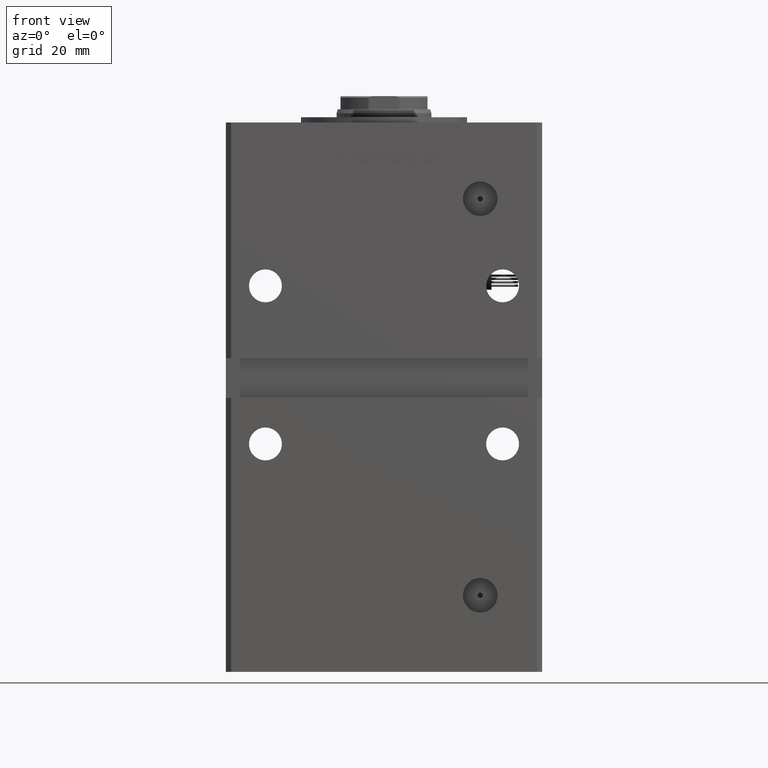
[diagram: clean part render]
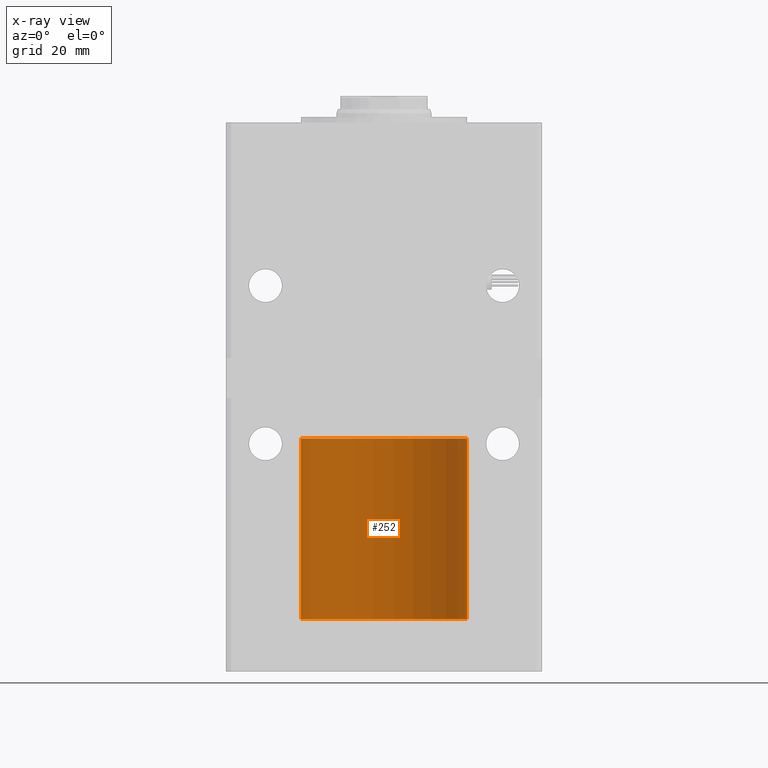
[diagram: x-ray — body ghosted, one internal face saturated and labeled with its STEP entity id]
A machine part, front view, then the same camera in x-ray: the body is ghosted and one INTERNAL B-rep face — a face not visible from any outside direction — is saturated and labeled: STEP entity #252.
In plain terms, the highlighted cylindrical surface (partial cylindrical patch) has radius 31.5 mm, axis along (0, -0, 1).
Its self-contained STEP definition (entity closure, byte-faithful):
#252 = ADVANCED_FACE ( 'NONE', ( #30803 ), #47981, .T. ) ;
#4994 = ORIENTED_EDGE ( 'NONE', *, *, #6700, .F. ) ;
#5452 = VECTOR ( 'NONE', #28426, 1000.000000000000000 ) ;
#5705 = DIRECTION ( 'NONE',  ( 1.000000000000000000, -9.892608450469889463E-18, -0.000000000000000000 ) ) ;
#6528 = DIRECTION ( 'NONE',  ( 0.000000000000000000, 1.000000000000000000, 0.000000000000000000 ) ) ;
#6700 = EDGE_CURVE ( 'NONE', #11824, #15753, #10664, .T. ) ;
#7622 = AXIS2_PLACEMENT_3D ( 'NONE', #48847, #44348, #10501 ) ;
#8800 = DIRECTION ( 'NONE',  ( 9.892608450469889463E-18, 1.000000000000000000, 0.000000000000000000 ) ) ;
#10221 = CARTESIAN_POINT ( 'NONE',  ( -198.5000000000000000, 2.289593014414659139E-16, 0.000000000000000000 ) ) ;
#10501 = DIRECTION ( 'NONE',  ( 0.000000000000000000, 1.000000000000000000, 0.000000000000000000 ) ) ;
#10664 = LINE ( 'NONE', #10944, #5452 ) ;
#10944 = CARTESIAN_POINT ( 'NONE',  ( 3.116171661898015219E-16, 31.50000000000000000, 0.000000000000000000 ) ) ;
#11824 = VERTEX_POINT ( 'NONE', #25715 ) ;
#13875 = EDGE_CURVE ( 'NONE', #11824, #34776, #15584, .T. ) ;
#15584 = CIRCLE ( 'NONE', #44434, 31.50000000000000000 ) ;
#15753 = VERTEX_POINT ( 'NONE', #24935 ) ;
#16447 = EDGE_CURVE ( 'NONE', #15753, #41250, #28327, .T. ) ;
#16908 = EDGE_LOOP ( 'NONE', ( #31989, #50022, #35919, #4994 ) ) ;
#18167 = DIRECTION ( 'NONE',  ( 1.000000000000000000, -9.892608450469889463E-18, -0.000000000000000000 ) ) ;
#24935 = CARTESIAN_POINT ( 'NONE',  ( -130.0000000000000000, 31.50000000000000000, 0.000000000000000000 ) ) ;
#25715 = CARTESIAN_POINT ( 'NONE',  ( -198.5000000000000000, 31.50000000000000000, 0.000000000000000000 ) ) ;
#28327 = CIRCLE ( 'NONE', #7622, 31.50000000000000000 ) ;
#28426 = DIRECTION ( 'NONE',  ( 1.000000000000000000, -9.892608450469889463E-18, -0.000000000000000000 ) ) ;
#29238 = CARTESIAN_POINT ( 'NONE',  ( -130.0000000000000000, -31.50000000000000000, 3.857637417314162689E-15 ) ) ;
#30234 = VECTOR ( 'NONE', #18167, 1000.000000000000000 ) ;
#30238 = DIRECTION ( 'NONE',  ( 1.000000000000000000, -9.892608450469889463E-18, -0.000000000000000000 ) ) ;
#30803 = FACE_OUTER_BOUND ( 'NONE', #16908, .T. ) ;
#31525 = AXIS2_PLACEMENT_3D ( 'NONE', #42383, #30238, #8800 ) ;
#31685 = EDGE_CURVE ( 'NONE', #34776, #41250, #43543, .T. ) ;
#31989 = ORIENTED_EDGE ( 'NONE', *, *, #13875, .T. ) ;
#34776 = VERTEX_POINT ( 'NONE', #46643 ) ;
#35919 = ORIENTED_EDGE ( 'NONE', *, *, #16447, .F. ) ;
#41250 = VERTEX_POINT ( 'NONE', #29238 ) ;
#42383 = CARTESIAN_POINT ( 'NONE',  ( 0.000000000000000000, -1.734723475976807094E-15, 0.000000000000000000 ) ) ;
#43543 = LINE ( 'NONE', #44389, #30234 ) ;
#44348 = DIRECTION ( 'NONE',  ( 1.000000000000000000, -9.892608450469889463E-18, -0.000000000000000000 ) ) ;
#44389 = CARTESIAN_POINT ( 'NONE',  ( -3.116171661898015219E-16, -31.50000000000000000, 3.857637417314162689E-15 ) ) ;
#44434 = AXIS2_PLACEMENT_3D ( 'NONE', #10221, #5705, #6528 ) ;
#46643 = CARTESIAN_POINT ( 'NONE',  ( -198.5000000000000000, -31.50000000000000000, 3.857637417314162689E-15 ) ) ;
#47981 = CYLINDRICAL_SURFACE ( 'NONE', #31525, 31.50000000000000000 ) ;
#48847 = CARTESIAN_POINT ( 'NONE',  ( -130.0000000000000000, -4.486843774157213810E-16, 0.000000000000000000 ) ) ;
#50022 = ORIENTED_EDGE ( 'NONE', *, *, #31685, .T. ) ;